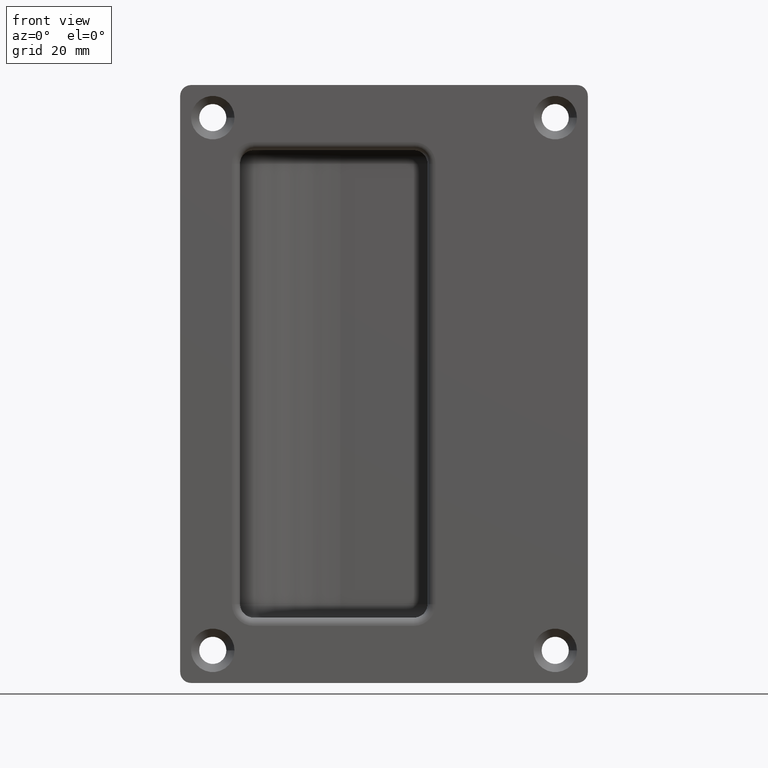
[diagram: clean part render]
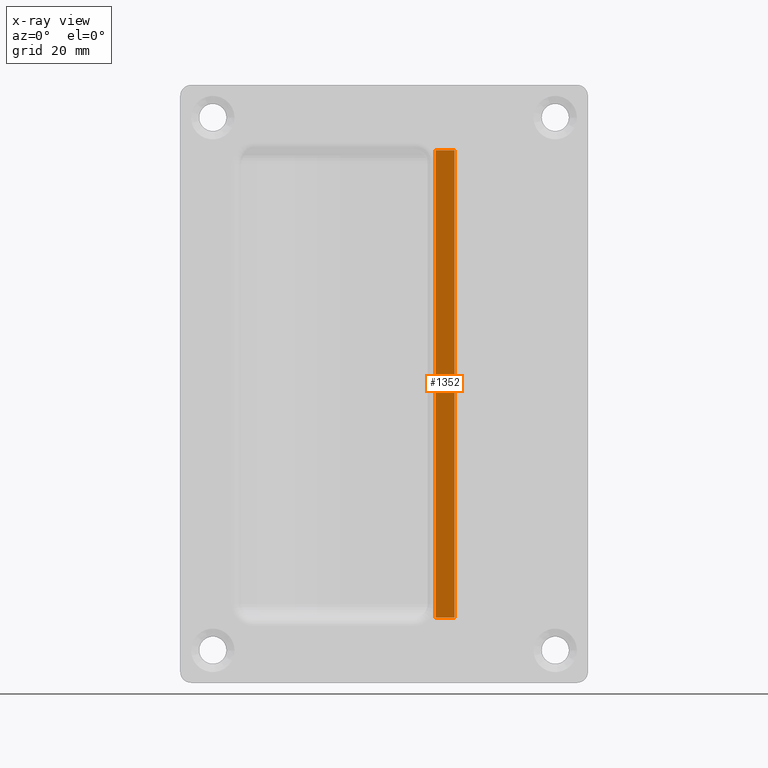
[diagram: x-ray — body ghosted, one internal face saturated and labeled with its STEP entity id]
A machine part, front view, then the same camera in x-ray: the body is ghosted and one INTERNAL B-rep face — a face not visible from any outside direction — is saturated and labeled: STEP entity #1352.
In plain terms, the highlighted planar face has unit normal (0, 1, 0).
Its self-contained STEP definition (entity closure, byte-faithful):
#62=PLANE('',#1504);
#133=LINE('',#2286,#229);
#136=LINE('',#2292,#232);
#137=LINE('',#2294,#233);
#138=LINE('',#2295,#234);
#229=VECTOR('',#1874,3.5);
#232=VECTOR('',#1879,86.);
#233=VECTOR('',#1880,3.5);
#234=VECTOR('',#1881,86.);
#356=FACE_OUTER_BOUND('',#442,.T.);
#442=EDGE_LOOP('',(#1149,#1150,#1151,#1152));
#651=VERTEX_POINT('',#2282);
#653=VERTEX_POINT('',#2285);
#655=VERTEX_POINT('',#2291);
#656=VERTEX_POINT('',#2293);
#826=EDGE_CURVE('',#651,#653,#133,.T.);
#829=EDGE_CURVE('',#655,#651,#136,.T.);
#830=EDGE_CURVE('',#655,#656,#137,.T.);
#831=EDGE_CURVE('',#653,#656,#138,.T.);
#1149=ORIENTED_EDGE('',*,*,#829,.F.);
#1150=ORIENTED_EDGE('',*,*,#830,.T.);
#1151=ORIENTED_EDGE('',*,*,#831,.F.);
#1152=ORIENTED_EDGE('',*,*,#826,.F.);
#1352=ADVANCED_FACE('',(#356),#62,.T.);
#1504=AXIS2_PLACEMENT_3D('',#2290,#1877,#1878);
#1874=DIRECTION('',(1.,0.,0.));
#1877=DIRECTION('center_axis',(0.,1.,0.));
#1878=DIRECTION('ref_axis',(0.,0.,1.));
#1879=DIRECTION('',(0.,0.,-1.));
#1880=DIRECTION('',(1.,0.,0.));
#1881=DIRECTION('',(0.,0.,1.));
#2282=CARTESIAN_POINT('',(36.5,1.,-43.));
#2285=CARTESIAN_POINT('',(40.,1.,-43.));
#2286=CARTESIAN_POINT('',(35.,1.,-43.));
#2290=CARTESIAN_POINT('Origin',(35.,1.,-43.));
#2291=CARTESIAN_POINT('',(36.5,1.,43.));
#2292=CARTESIAN_POINT('',(36.5,1.,-1.24999999999998));
#2293=CARTESIAN_POINT('',(40.,1.,43.));
#2294=CARTESIAN_POINT('',(35.,1.,43.));
#2295=CARTESIAN_POINT('',(40.,1.,43.));